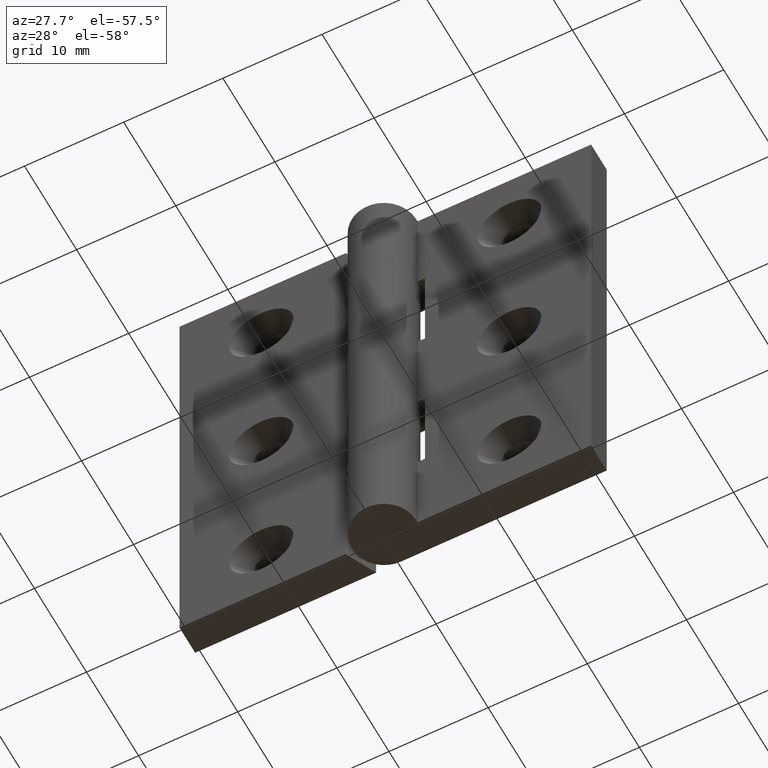
[diagram: clean part render]
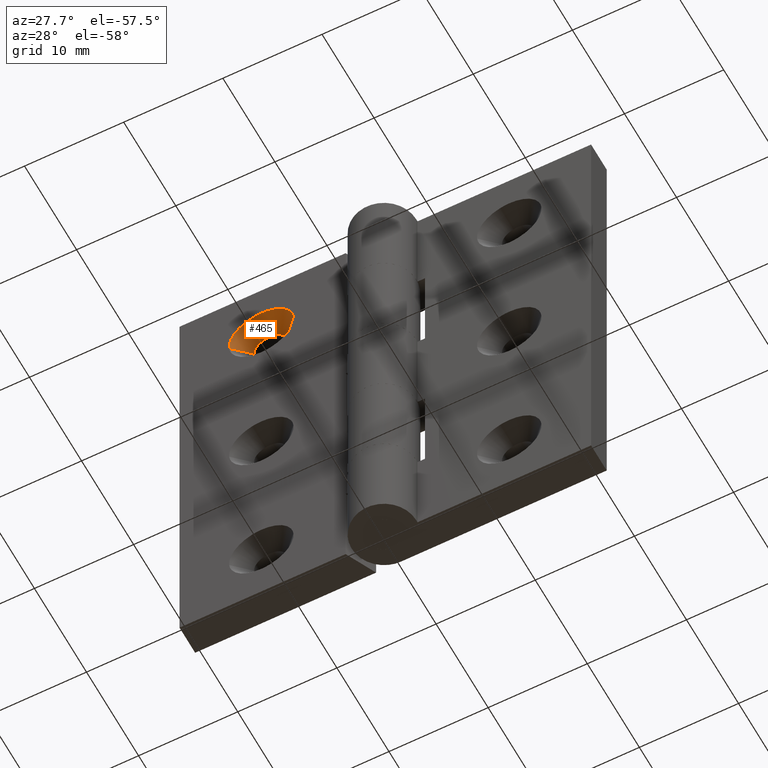
[diagram: same view with one face highlighted and labeled with its STEP entity id]
A machine part, auxiliary view. The second image highlights one B-rep face of the part: STEP entity #465.
In plain terms, the highlighted face is a freeform B-spline surface patch.
Its self-contained STEP definition (entity closure, byte-faithful):
#265=CARTESIAN_POINT('',(-14.097007699373471,1.900001999909952,42.902322694046831));
#266=VERTEX_POINT('',#265);
#287=CARTESIAN_POINT('',(-10.902976322527110,1.900001999909949,43.097677664029021));
#288=VERTEX_POINT('',#287);
#346=CARTESIAN_POINT('',(-12.499991999999899,1.900002000000000,44.599999999999987));
#347=VERTEX_POINT('',#346);
#348=CARTESIAN_POINT('',(-12.499991999999899,1.900002000000000,44.599999999999987));
#349=CARTESIAN_POINT('',(-11.019993242210457,1.900001999954975,44.586071555087415));
#350=CARTESIAN_POINT('',(-10.902976322527110,1.900001999909949,43.097677664029021));
#358=(BOUNDED_CURVE()B_SPLINE_CURVE(2,(#348,#349,#350),.UNSPECIFIED.,.F.,.U.)B_SPLINE_CURVE_WITH_KNOTS((3,3),(0.0,0.236331300558734),.UNSPECIFIED.)CURVE()GEOMETRIC_REPRESENTATION_ITEM()RATIONAL_B_SPLINE_CURVE((1.0,0.723120658691932,0.969723356017315))REPRESENTATION_ITEM(''));
#359=EDGE_CURVE('',#347,#288,#358,.T.);
#361=CARTESIAN_POINT('',(-14.097007699373478,1.900001999909952,42.902322694046831));
#362=CARTESIAN_POINT('',(-14.099992000044043,1.900001999911258,42.951115757872401));
#363=CARTESIAN_POINT('',(-14.099992000043351,1.900001999912645,42.999999999995822));
#364=CARTESIAN_POINT('',(-14.099992000020581,1.900001999958038,44.599999999998005));
#365=CARTESIAN_POINT('',(-12.499991999999899,1.900002000000000,44.599999999999987));
#373=(BOUNDED_CURVE()B_SPLINE_CURVE(2,(#361,#362,#363,#364,#365),.UNSPECIFIED.,.F.,.U.)B_SPLINE_CURVE_WITH_KNOTS((3,2,3),(0.739333000846576,0.750000000000000,1.0),.UNSPECIFIED.)CURVE()GEOMETRIC_REPRESENTATION_ITEM()RATIONAL_B_SPLINE_CURVE((0.976072124410239,0.987502833131493,1.0,0.707106781186548,1.0))REPRESENTATION_ITEM(''));
#374=EDGE_CURVE('',#266,#347,#373,.T.);
#395=CARTESIAN_POINT('',(-10.942222510215359,1.941252000000001,43.073702017841647));
#396=CARTESIAN_POINT('',(-10.944122341827565,1.941252000000001,43.097841667270643));
#397=CARTESIAN_POINT('',(-11.068345221509171,1.941252000000000,44.676243009422301));
#398=CARTESIAN_POINT('',(-12.622290115465679,1.941252000000000,44.553944893956512));
#399=CARTESIAN_POINT('',(-14.176235009422188,1.941252000000000,44.431646778490737));
#400=CARTESIAN_POINT('',(-14.053069335987324,1.941252000000000,42.866678515358437));
#401=CARTESIAN_POINT('',(-14.052206861453707,1.941252000000000,42.855719737354626));
#402=CARTESIAN_POINT('',(-9.209781714168475,0.207720750000000,43.155668177339038));
#403=CARTESIAN_POINT('',(-9.213794403820465,0.207720750000000,43.206654233599892));
#404=CARTESIAN_POINT('',(-9.476169164107073,0.207720750000000,46.540441655406305));
#405=CARTESIAN_POINT('',(-12.758301409756641,0.207720750000000,46.282132245649571));
#406=CARTESIAN_POINT('',(-16.040433655406208,0.207720750000000,46.023822835892844));
#407=CARTESIAN_POINT('',(-15.780291851208455,0.207720750000000,42.718407811318343));
#408=CARTESIAN_POINT('',(-15.778470193639503,0.207720750000000,42.695261457287934));
#416=(BOUNDED_SURFACE()B_SPLINE_SURFACE(2,1,((#395,#402),(#396,#403),(#397,#404),(#398,#405),(#399,#406),(#400,#407),(#401,#408)),.UNSPECIFIED.,.F.,.F.,.U.)B_SPLINE_SURFACE_WITH_KNOTS((3,1,2,1,3),(2,2),(0.0,0.122206539077070,5.577036718663667,11.031866898250261,11.086751808365131),(0.0,2.452182733369774),.UNSPECIFIED.)GEOMETRIC_REPRESENTATION_ITEM()RATIONAL_B_SPLINE_SURFACE(((1.013123586037301,1.013123586037301),(1.006561793018650,1.006561793018650),(0.707106781186548,0.707106781186548),(1.0,1.0),(0.707106781186548,0.707106781186548),(1.002947006131921,1.002947006131921),(1.005894012263842,1.005894012263842)))REPRESENTATION_ITEM('')SURFACE());
#417=ORIENTED_EDGE('',*,*,#359,.T.);
#418=CARTESIAN_POINT('',(-9.260010665359770,0.250001999981075,43.254992061261852));
#419=VERTEX_POINT('',#418);
#420=CARTESIAN_POINT('',(-10.902976322527110,1.900001999909949,43.097677664029021));
#421=CARTESIAN_POINT('',(-9.260010665359770,0.250001999981075,43.254992061261852));
#422=QUASI_UNIFORM_CURVE('',1,(#420,#421),.UNSPECIFIED.,.F.,.U.);
#423=EDGE_CURVE('',#288,#419,#422,.T.);
#424=ORIENTED_EDGE('',*,*,#423,.T.);
#425=CARTESIAN_POINT('',(-12.499991999999899,0.250002000000000,46.250000000000000));
#426=VERTEX_POINT('',#425);
#427=CARTESIAN_POINT('',(-12.499991999999899,0.250002000000000,46.250000000000000));
#428=CARTESIAN_POINT('',(-9.495722902236034,0.250001999990538,46.250000000000746));
#429=CARTESIAN_POINT('',(-9.260010665359772,0.250001999981075,43.254992061261845));
#437=(BOUNDED_CURVE()B_SPLINE_CURVE(2,(#427,#428,#429),.UNSPECIFIED.,.F.,.U.)B_SPLINE_CURVE_WITH_KNOTS((3,3),(0.0,0.236331300625102),.UNSPECIFIED.)CURVE()GEOMETRIC_REPRESENTATION_ITEM()RATIONAL_B_SPLINE_CURVE((1.0,0.723120658614176,0.969723356155820))REPRESENTATION_ITEM(''));
#438=EDGE_CURVE('',#426,#419,#437,.T.);
#439=ORIENTED_EDGE('',*,*,#438,.F.);
#440=CARTESIAN_POINT('',(-15.739973334640030,0.250001999981076,42.745007938738162));
#441=VERTEX_POINT('',#440);
#442=CARTESIAN_POINT('',(-15.739973334640032,0.250001999981076,42.745007938738155));
#443=CARTESIAN_POINT('',(-15.749992000018423,0.250001999981419,42.872307152150839));
#444=CARTESIAN_POINT('',(-15.749992000018050,0.250001999981791,42.999999999998572));
#445=CARTESIAN_POINT('',(-15.749992000008623,0.250001999991253,46.249999999999304));
#446=CARTESIAN_POINT('',(-12.499991999999899,0.250002000000000,46.250000000000000));
#454=(BOUNDED_CURVE()B_SPLINE_CURVE(2,(#442,#443,#444,#445,#446),.UNSPECIFIED.,.F.,.U.)B_SPLINE_CURVE_WITH_KNOTS((3,2,3),(0.736331300625102,0.750000000000000,1.0),.UNSPECIFIED.)CURVE()GEOMETRIC_REPRESENTATION_ITEM()RATIONAL_B_SPLINE_CURVE((0.969723356155820,0.983986122572371,1.0,0.707106781186547,1.0))REPRESENTATION_ITEM(''));
#455=EDGE_CURVE('',#441,#426,#454,.T.);
#456=ORIENTED_EDGE('',*,*,#455,.F.);
#457=CARTESIAN_POINT('',(-14.097007699373471,1.900001999909952,42.902322694046831));
#458=CARTESIAN_POINT('',(-15.739973334640030,0.250001999981076,42.745007938738162));
#459=QUASI_UNIFORM_CURVE('',1,(#457,#458),.UNSPECIFIED.,.F.,.U.);
#460=EDGE_CURVE('',#266,#441,#459,.T.);
#461=ORIENTED_EDGE('',*,*,#460,.F.);
#462=ORIENTED_EDGE('',*,*,#374,.T.);
#463=EDGE_LOOP('',(#417,#424,#439,#456,#461,#462));
#464=FACE_OUTER_BOUND('',#463,.T.);
#465=ADVANCED_FACE('',(#464),#416,.F.);